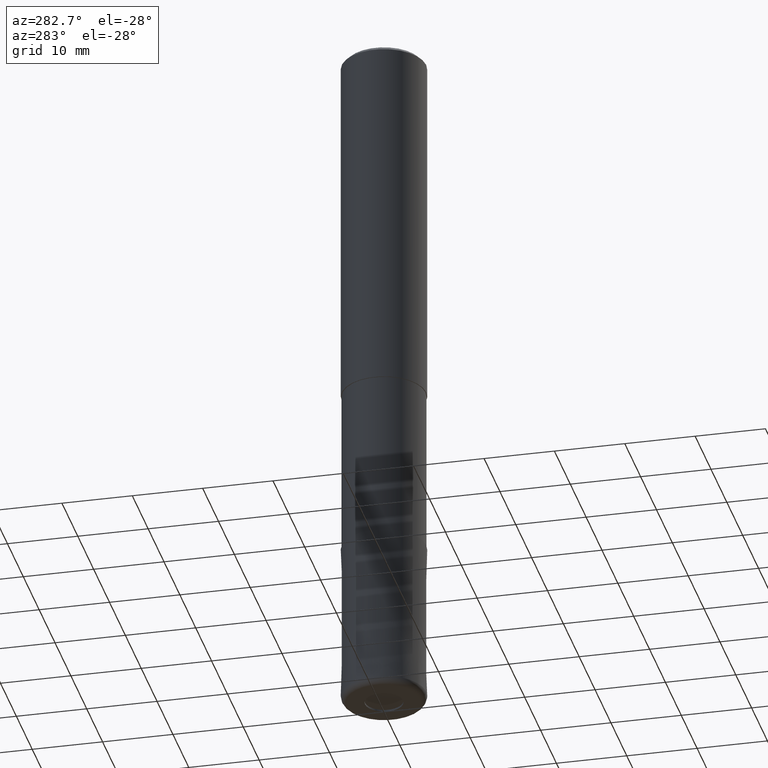
[diagram: clean part render]
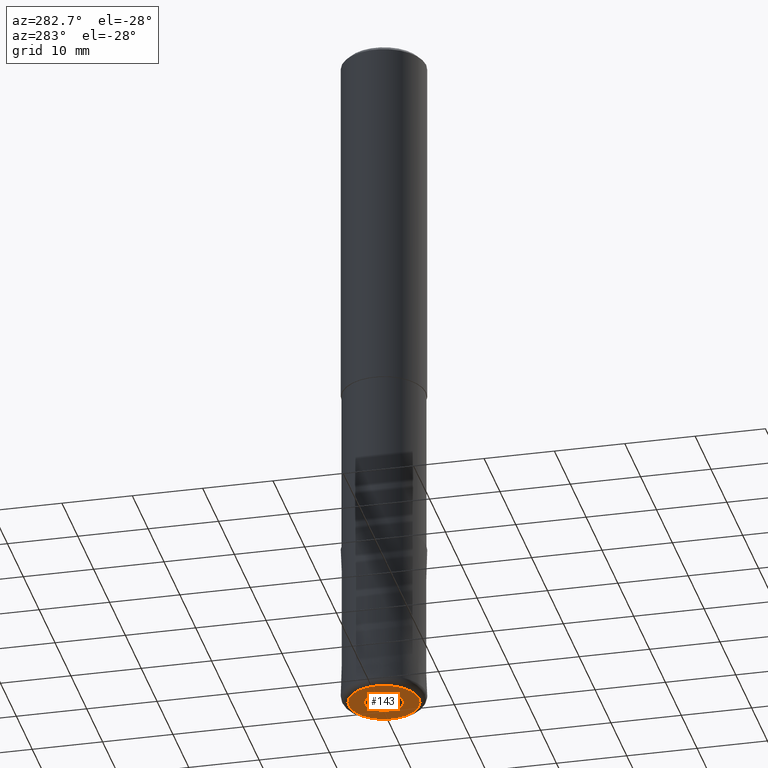
[diagram: same view with one face highlighted and labeled with its STEP entity id]
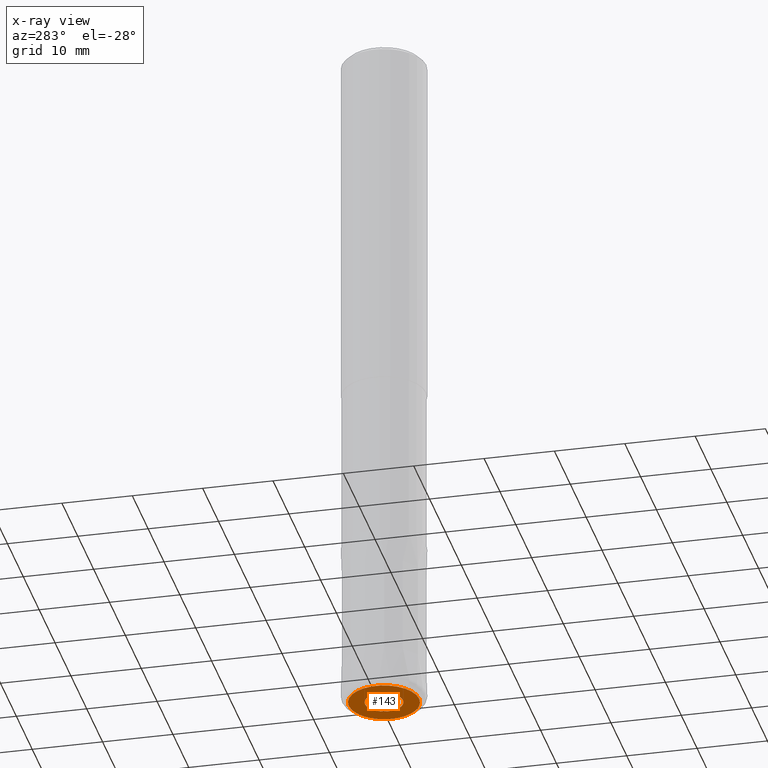
[diagram: x-ray of the same camera — body ghosted, the highlighted face saturated]
A machine part, auxiliary view. The second image highlights one B-rep face of the part: STEP entity #143.
The next image is the same camera in x-ray: the body ghosted, the highlighted face saturated — about 0% of this face is hidden behind the body in this view.
In plain terms, the highlighted planar face has unit normal (0, 0, -1).
Its self-contained STEP definition (entity closure, byte-faithful):
#123=VERTEX_POINT('',#311);
#135=VERTEX_POINT('',#323);
#143=ADVANCED_FACE('',(#331,#332),#333,.T.);
#161=EDGE_CURVE('',#135,#173,#352,.T.);
#163=VERTEX_POINT('',#354);
#173=VERTEX_POINT('',#366);
#201=EDGE_CURVE('',#163,#123,#399,.T.);
#215=EDGE_CURVE('',#173,#135,#416,.T.);
#265=EDGE_CURVE('',#123,#163,#474,.T.);
#311=CARTESIAN_POINT('',(0.0,5.0,-100.0));
#323=CARTESIAN_POINT('',(3.30643715532042E-016,-2.7,-100.0));
#331=FACE_BOUND('',#543,.T.);
#332=FACE_OUTER_BOUND('',#544,.T.);
#333=PLANE('',#545);
#352=CIRCLE('',#569,2.7);
#354=CARTESIAN_POINT('',(6.12303176911189E-016,-5.0,-100.0));
#366=CARTESIAN_POINT('',(0.0,2.7,-100.0));
#399=CIRCLE('',#623,5.0);
#416=CIRCLE('',#643,2.7);
#474=CIRCLE('',#720,5.0);
#543=EDGE_LOOP('',(#773,#774));
#544=EDGE_LOOP('',(#775,#776));
#545=AXIS2_PLACEMENT_3D('',#777,#778,#779);
#569=AXIS2_PLACEMENT_3D('',#795,#796,#797);
#623=AXIS2_PLACEMENT_3D('',#852,#853,#854);
#643=AXIS2_PLACEMENT_3D('',#881,#882,#883);
#720=AXIS2_PLACEMENT_3D('',#962,#963,#964);
#773=ORIENTED_EDGE('',*,*,#215,.F.);
#774=ORIENTED_EDGE('',*,*,#161,.F.);
#775=ORIENTED_EDGE('',*,*,#265,.T.);
#776=ORIENTED_EDGE('',*,*,#201,.T.);
#777=CARTESIAN_POINT('',(0.0,3.85,-100.0));
#778=DIRECTION('',(0.0,0.0,-1.0));
#779=DIRECTION('',(0.0,1.0,0.0));
#795=CARTESIAN_POINT('',(0.0,0.0,-100.0));
#796=DIRECTION('',(0.0,0.0,-1.0));
#797=DIRECTION('',(0.0,1.0,0.0));
#852=CARTESIAN_POINT('',(0.0,0.0,-100.0));
#853=DIRECTION('',(0.0,0.0,-1.0));
#854=DIRECTION('',(0.0,1.0,0.0));
#881=CARTESIAN_POINT('',(0.0,0.0,-100.0));
#882=DIRECTION('',(0.0,0.0,-1.0));
#883=DIRECTION('',(0.0,1.0,0.0));
#962=CARTESIAN_POINT('',(0.0,0.0,-100.0));
#963=DIRECTION('',(0.0,0.0,-1.0));
#964=DIRECTION('',(0.0,1.0,0.0));